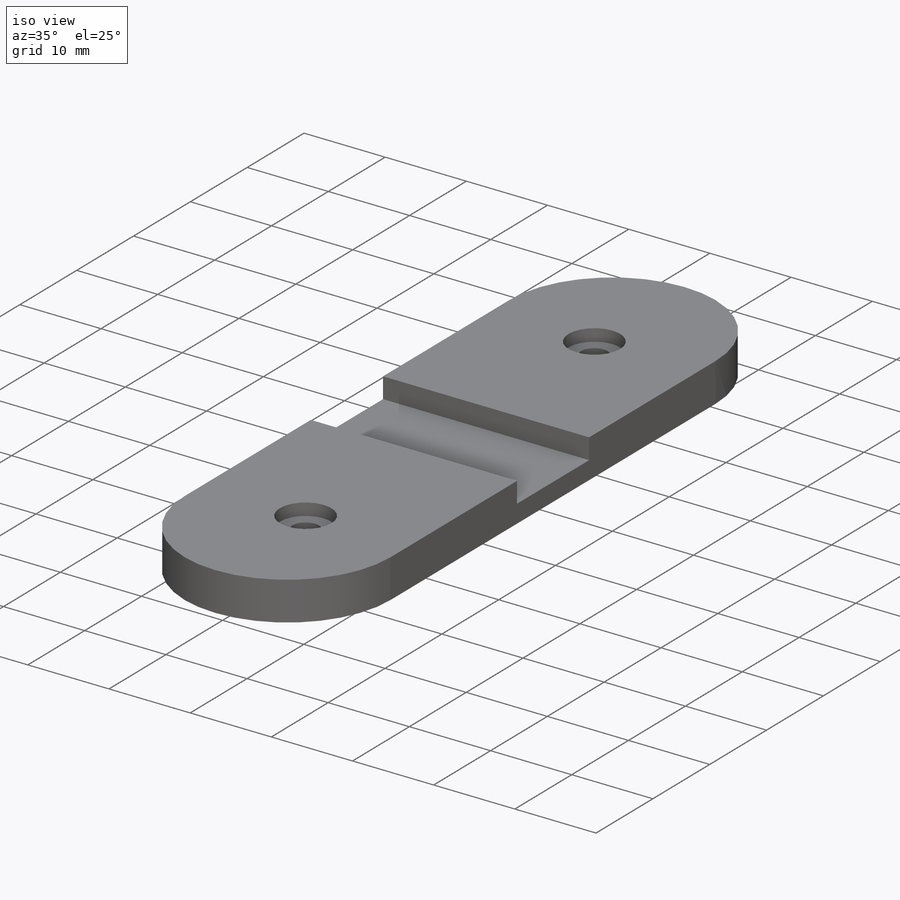
[diagram: iso view]
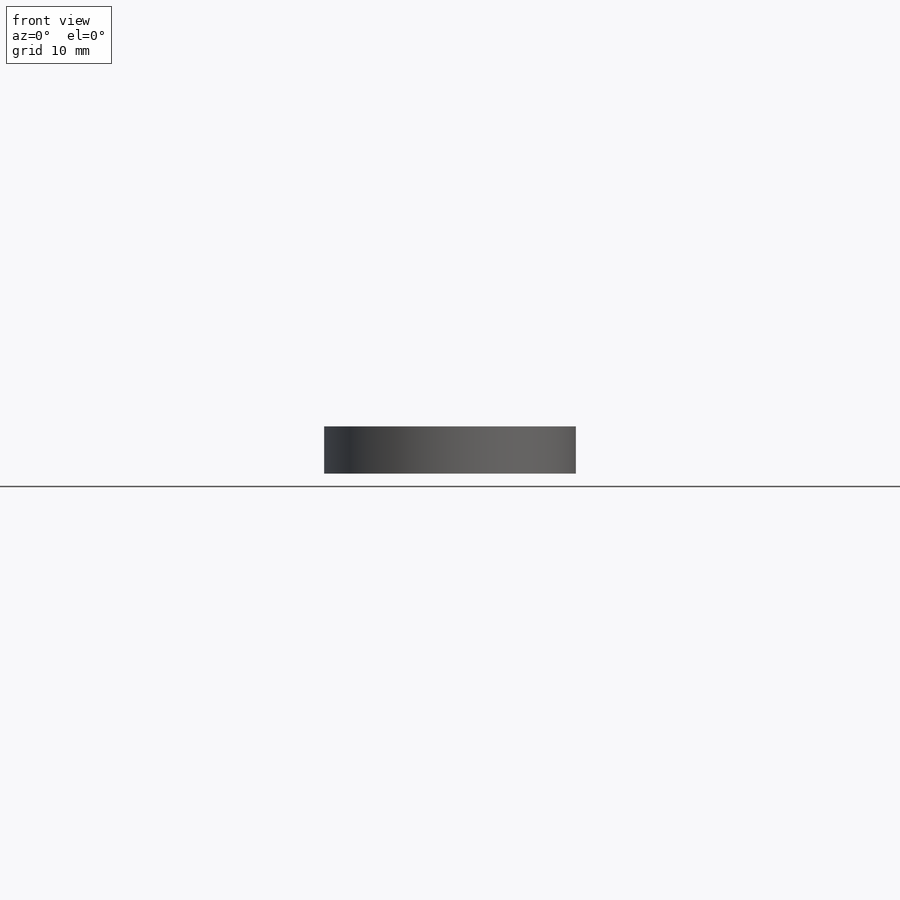
[diagram: front view]
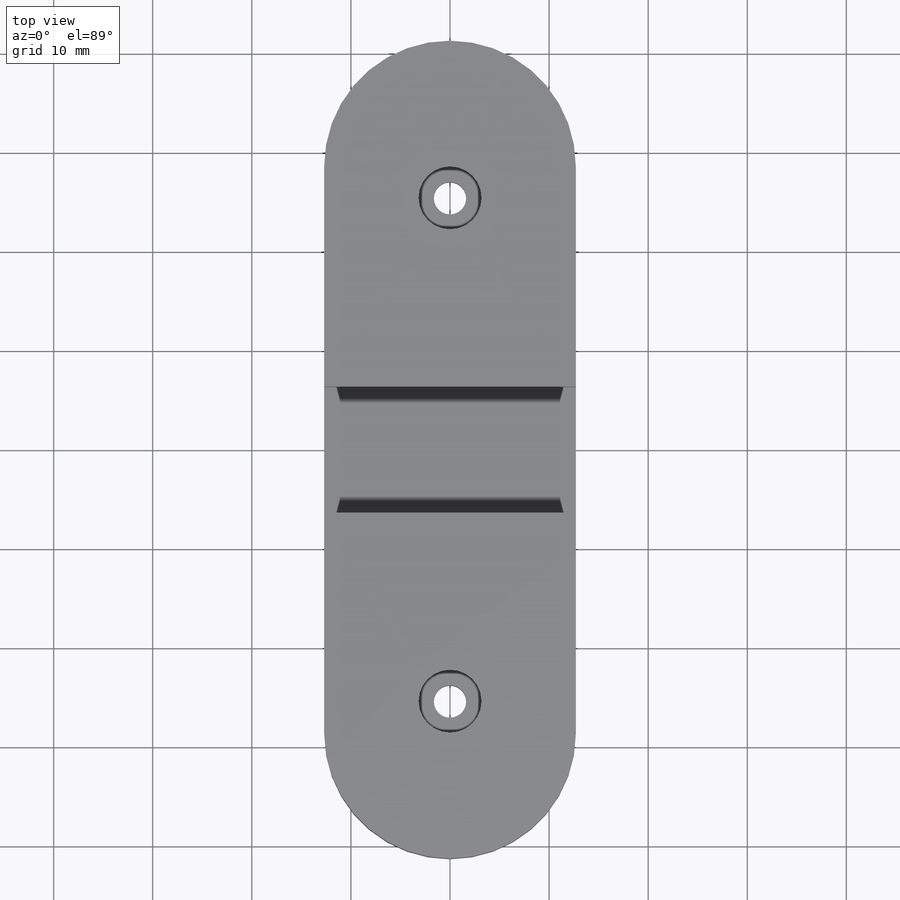
[diagram: top view]
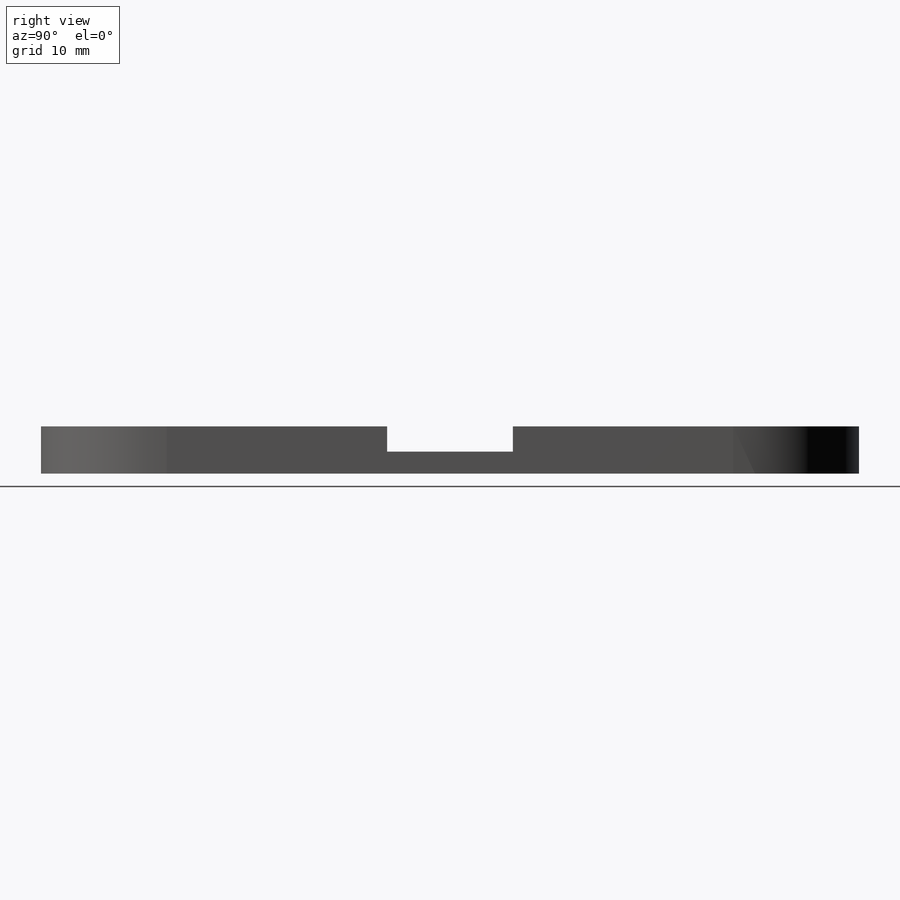
[diagram: right view]
SOLIDWORKS PART (.sldprt)
format: sldprt  version: not decoded by parser v0  size: 188,416 bytes
history: native  units: mm
features: sketch x4, material x1, extrude x1, hole x1, cut_extrude x1 (+11 scaffold rows collapsed)
feature tree (19):
  scaffold x11  (default folders/planes/origin — collapsed)
  material  "Material <not specified>"
  sketch  "Sketch1"  dims[c1.D2=12.7mm c1.D1=20.0mm c2.D2=~78.87609mm c2.D1=82.55mm]
  extrude  "Boss-Extrude1"  Depth=4.7625mm
  hole  "CBORE for #4 Button Head Cap Screw1"  Diameter=3.2639mm Depth=4.7625mm
  sketch  "Sketch5"  dims[D1=50.8mm]
  sketch  "Sketch4"  dims[hole-wizard template sketch: 42 standard entries collapsed; hole parameters kept: c12.Thru Hole Depth=4.7625mm c12.C'Bore Dia.=6.35mm c12.C'Bore Depth=1.4986mm]
  sketch  "Sketch6"  dims[D1=12.7mm]
  cut_extrude  "Cut-Extrude1"  Depth=2.54mm
decode coverage: 7 of 7 modeling features carry decoded parameters
note: ~ marks probable driven/reference dimensions
note: suppression state not decoded; provenance and decode notes live in map.json
